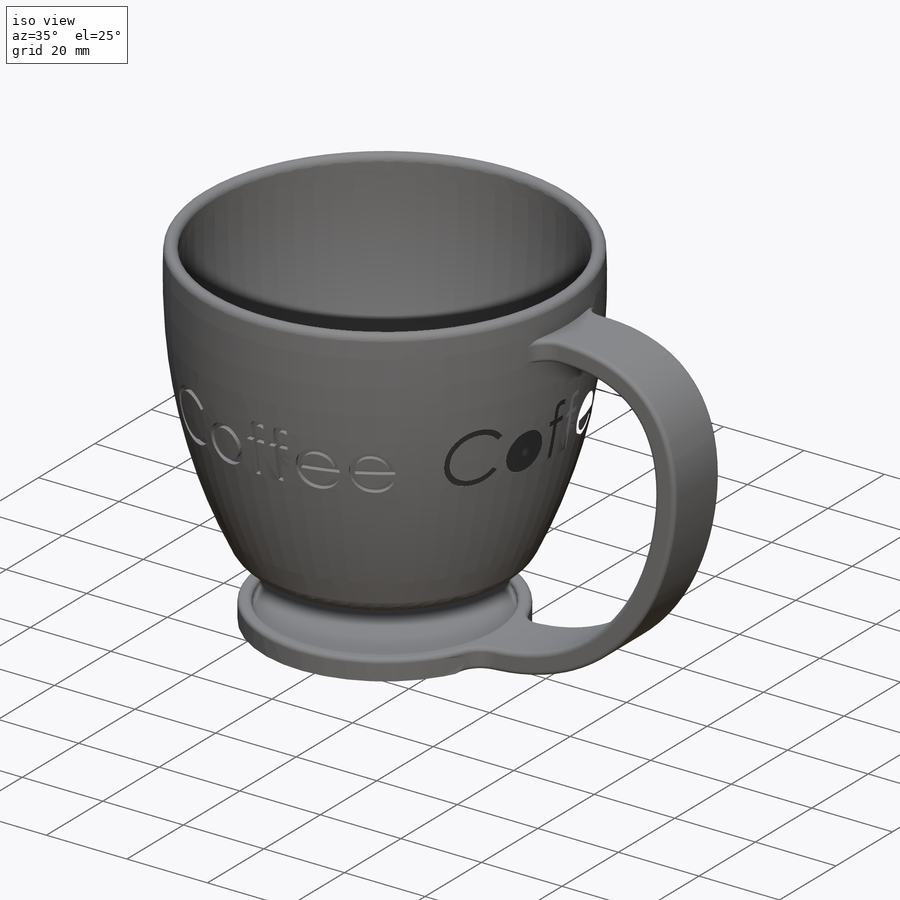
[diagram: iso view]
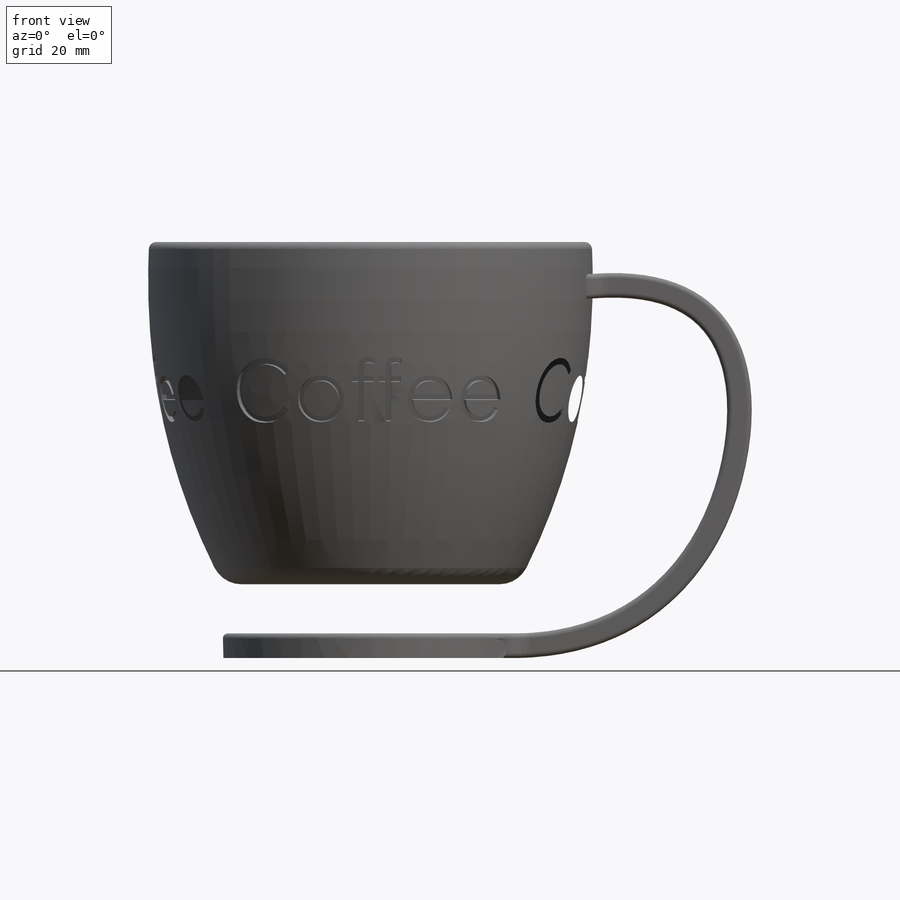
[diagram: front view]
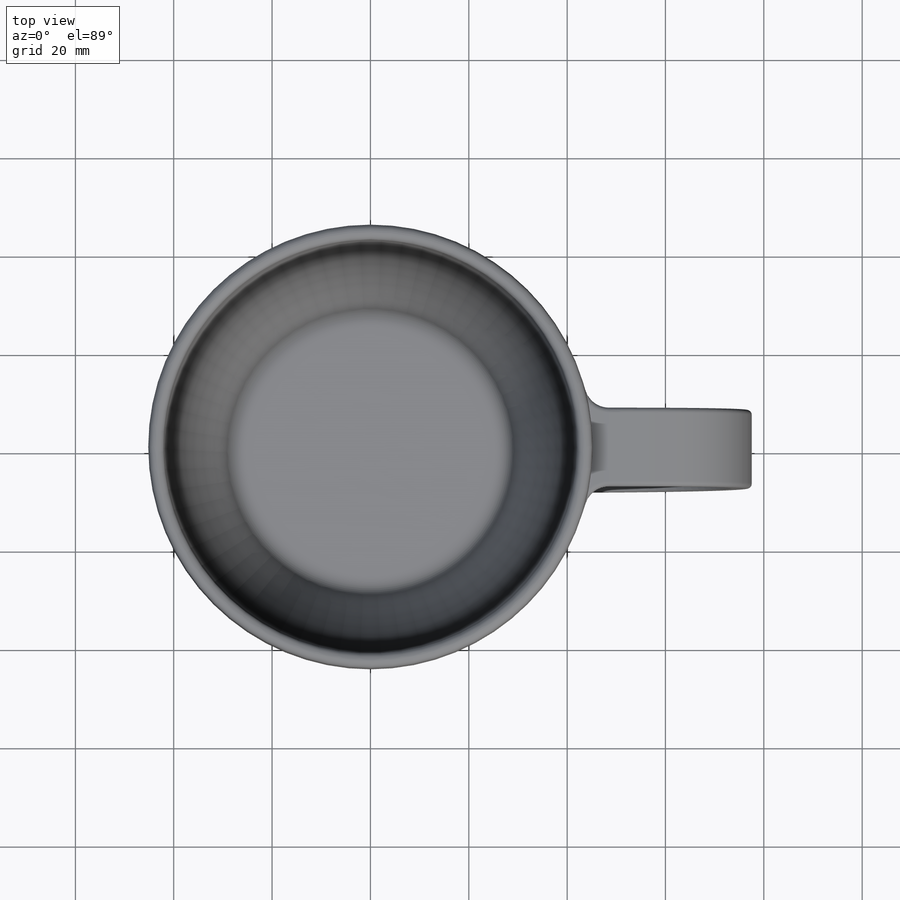
[diagram: top view]
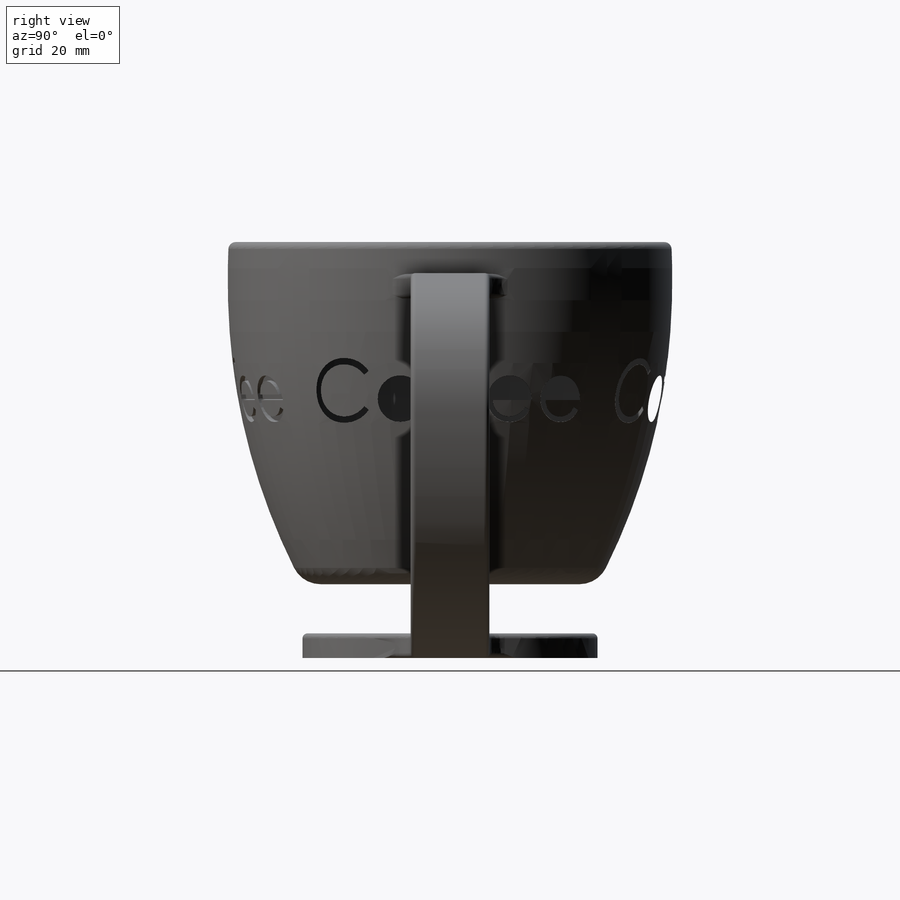
[diagram: right view]
SOLIDWORKS PART (.sldprt)
format: sldprt  version: not decoded by parser v0  size: 3,820,032 bytes
history: native  units: mm
features: sketch x9, fillet x6, plane x4, extrude x3, material x1, revolve x1, sweep x1, cut_extrude x1, pattern_circular x1 (+16 scaffold rows collapsed)
feature tree (43):
  scaffold x16  (default folders/planes/origin — collapsed)
  material  "Material <not specified>"
  sketch  "Sketch1"  dims[c1.D1=30.0mm c1.D2=45.0mm c2.D1=30.0mm c2.D4=3.0mm c2.D5=3.0mm c2.D3=3.0mm]
  revolve  "Revolve1"  Angle=360deg
  fillet  "Fillet1"  Radius=2mm
  fillet  "Fillet3"  Radius=1.49mm
  fillet  "Fillet4"  Radius=6mm
  plane  "Plane1"  Offset=15mm
  sketch  "Sketch2"  dims[D1=60.0mm]
  extrude  "Boss-Extrude1"  Depth=5mm
  sketch  "Sketch3"  dims[D1=30.0mm]
  plane  "Plane2"  Offset=30mm
  sketch  "Sketch4"  dims[D1=8.0mm D2=16.0mm]
  sweep  "Sweep1"
  sketch  "Sketch5"  dims[D1=0.0mm]
  extrude  "Boss-Extrude2"  Depth=5mm
  sketch  "Sketch6"  dims[D1=0.0mm]
  extrude  "Boss-Extrude3"  Depth=2mm
  fillet  "Fillet5"  Radius=5mm
  sketch  "Sketch7"  dims[D1=54.0mm]
  cut_extrude  "Cut-Extrude1"  Depth=2mm
  fillet  "Fillet8"  Radius=1mm
  fillet  "Fillet9"  Radius=1mm
  plane  "Plane3"  Offset=100mm
  sketch  "Sketch9"  dims[D1=1.0mm]
  plane  "Plane4"  Offset=100mm
  sketch  "Sketch10"  dims[c1.D1=1.0mm c2.D1=1.0mm]
  pattern_circular  "CirPattern1"  Count=4 Angle=360deg
decode coverage: 21 of 22 modeling features carry decoded parameters
note: suppression state not decoded; provenance and decode notes live in map.json
